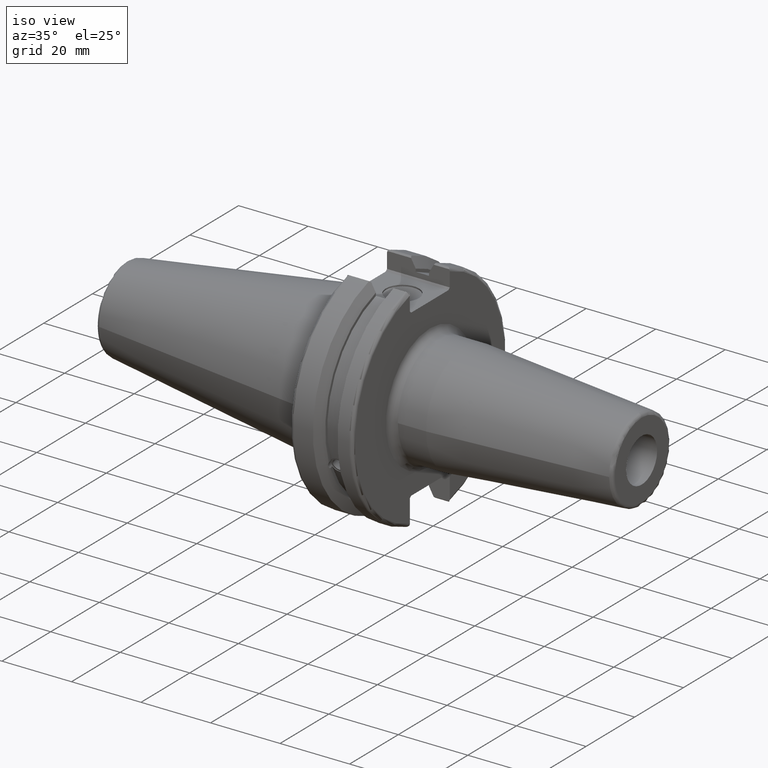
[diagram: clean part render]
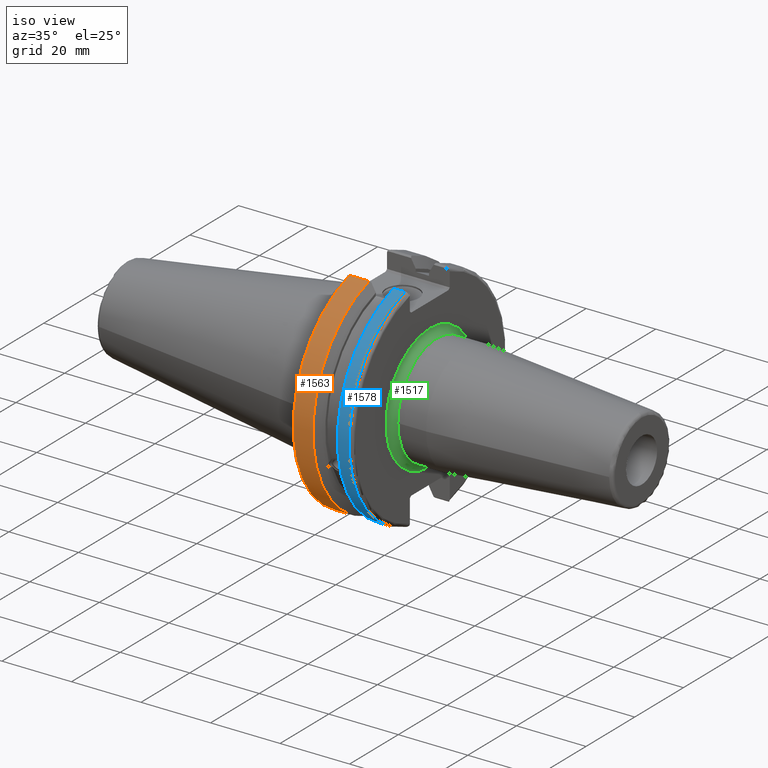
[diagram: same view with three faces highlighted in distinct colors, each labeled with its STEP entity id]
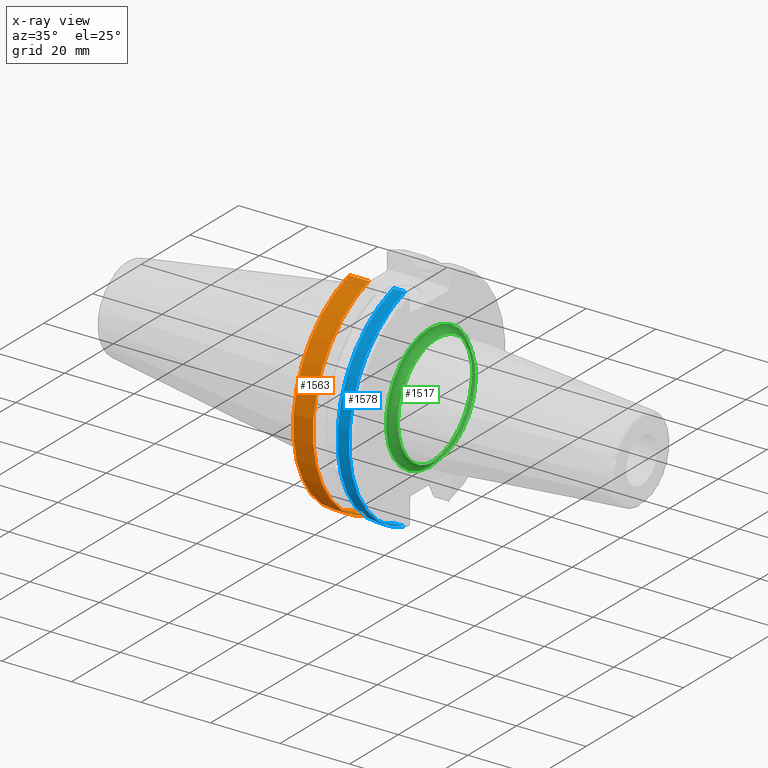
[diagram: x-ray of the same camera — body ghosted, the three highlighted faces saturated]
A machine part, iso view with three faces highlighted in distinct colors.
The next image is the same camera in x-ray (body ghosted, the three faces saturated) — at least one of them is partly hidden behind the body in this view.
Their STEP definitions:

[orange] entity #1563 — the highlighted cylindrical surface (partial cylindrical patch) has radius 31.75 mm, axis along (1, 0, 0).
#101=CYLINDRICAL_SURFACE('',#1741,31.75);
#227=LINE('',#2888,#323);
#228=LINE('',#2894,#324);
#323=VECTOR('',#2103,10.);
#324=VECTOR('',#2106,10.);
#419=FACE_OUTER_BOUND('',#518,.T.);
#518=EDGE_LOOP('',(#1312,#1313,#1314,#1315));
#610=CIRCLE('',#1738,31.75);
#612=CIRCLE('',#1742,31.75);
#759=VERTEX_POINT('',#2866);
#760=VERTEX_POINT('',#2875);
#761=VERTEX_POINT('',#2887);
#762=VERTEX_POINT('',#2893);
#960=EDGE_CURVE('',#759,#760,#610,.T.);
#963=EDGE_CURVE('',#760,#761,#227,.T.);
#965=EDGE_CURVE('',#762,#759,#228,.T.);
#966=EDGE_CURVE('',#761,#762,#612,.T.);
#1312=ORIENTED_EDGE('',*,*,#960,.F.);
#1313=ORIENTED_EDGE('',*,*,#965,.F.);
#1314=ORIENTED_EDGE('',*,*,#966,.F.);
#1315=ORIENTED_EDGE('',*,*,#963,.F.);
#1563=ADVANCED_FACE('',(#419),#101,.T.);
#1738=AXIS2_PLACEMENT_3D('',#2876,#2097,#2098);
#1741=AXIS2_PLACEMENT_3D('',#2892,#2104,#2105);
#1742=AXIS2_PLACEMENT_3D('',#2895,#2107,#2108);
#2097=DIRECTION('center_axis',(-1.,0.,0.));
#2098=DIRECTION('ref_axis',(0.,-1.,1.60812264967664E-16));
#2103=DIRECTION('',(1.,0.,0.));
#2104=DIRECTION('center_axis',(1.,0.,0.));
#2105=DIRECTION('ref_axis',(0.,-1.,1.22464679914735E-16));
#2106=DIRECTION('',(-1.,0.,0.));
#2107=DIRECTION('center_axis',(1.,0.,0.));
#2108=DIRECTION('ref_axis',(0.,0.,-1.));
#2866=CARTESIAN_POINT('',(2.,-8.67204822802685,-30.5427254764662));
#2875=CARTESIAN_POINT('',(2.,-8.67204822802685,30.5427254764662));
#2876=CARTESIAN_POINT('Origin',(2.,0.,0.));
#2887=CARTESIAN_POINT('',(7.64983323092436,-8.67204822802685,30.5427254764662));
#2888=CARTESIAN_POINT('',(4.32491661546218,-8.67204822802685,30.5427254764662));
#2892=CARTESIAN_POINT('Origin',(4.32491661546218,0.,0.));
#2893=CARTESIAN_POINT('',(7.64983323092436,-8.67204822802685,-30.5427254764662));
#2894=CARTESIAN_POINT('',(4.32491661546218,-8.67204822802685,-30.5427254764662));
#2895=CARTESIAN_POINT('Origin',(7.64983323092436,0.,0.));

[blue] entity #1578 — the highlighted cylindrical surface (partial cylindrical patch) has radius 31.75 mm, axis along (1, 0, 0).
#102=CYLINDRICAL_SURFACE('',#1766,31.75);
#250=LINE('',#2996,#346);
#251=LINE('',#2998,#347);
#346=VECTOR('',#2176,10.);
#347=VECTOR('',#2179,10.);
#434=FACE_OUTER_BOUND('',#536,.T.);
#536=EDGE_LOOP('',(#1398,#1399,#1400,#1401));
#590=CIRCLE('',#1684,31.75);
#609=CIRCLE('',#1734,31.75);
#695=VERTEX_POINT('',#2547);
#696=VERTEX_POINT('',#2551);
#746=VERTEX_POINT('',#2804);
#747=VERTEX_POINT('',#2813);
#869=EDGE_CURVE('',#696,#695,#590,.T.);
#942=EDGE_CURVE('',#746,#747,#609,.T.);
#1004=EDGE_CURVE('',#747,#695,#250,.T.);
#1005=EDGE_CURVE('',#696,#746,#251,.T.);
#1398=ORIENTED_EDGE('',*,*,#942,.F.);
#1399=ORIENTED_EDGE('',*,*,#1005,.F.);
#1400=ORIENTED_EDGE('',*,*,#869,.T.);
#1401=ORIENTED_EDGE('',*,*,#1004,.F.);
#1578=ADVANCED_FACE('',(#434),#102,.T.);
#1684=AXIS2_PLACEMENT_3D('',#2552,#1954,#1955);
#1734=AXIS2_PLACEMENT_3D('',#2814,#2078,#2079);
#1766=AXIS2_PLACEMENT_3D('',#2997,#2177,#2178);
#1954=DIRECTION('center_axis',(1.,0.,0.));
#1955=DIRECTION('ref_axis',(0.,0.,-1.));
#2078=DIRECTION('center_axis',(1.,0.,0.));
#2079=DIRECTION('ref_axis',(0.,-1.,1.60812264967664E-16));
#2176=DIRECTION('',(-1.,0.,0.));
#2177=DIRECTION('center_axis',(1.,0.,0.));
#2178=DIRECTION('ref_axis',(0.,-1.,1.22464679914735E-16));
#2179=DIRECTION('',(1.,0.,0.));
#2547=CARTESIAN_POINT('',(14.7021667690756,-8.67204822802685,-30.5427254764662));
#2551=CARTESIAN_POINT('',(14.7021667690756,-8.67204822802685,30.5427254764662));
#2552=CARTESIAN_POINT('Origin',(14.7021667690756,0.,0.));
#2804=CARTESIAN_POINT('',(18.05,-8.67204822802685,30.5427254764662));
#2813=CARTESIAN_POINT('',(18.05,-8.67204822802685,-30.5427254764662));
#2814=CARTESIAN_POINT('Origin',(18.05,0.,0.));
#2996=CARTESIAN_POINT('',(16.8760833845378,-8.67204822802685,-30.5427254764662));
#2997=CARTESIAN_POINT('Origin',(16.8760833845378,0.,0.));
#2998=CARTESIAN_POINT('',(16.8760833845378,-8.67204822802685,30.5427254764662));

[green] entity #1517 — the highlighted toroidal blend (fillet) surface has major radius 18 mm and minor (blend) radius 2 mm.
#373=FACE_OUTER_BOUND('',#463,.T.);
#463=EDGE_LOOP('',(#1044,#1045,#1046,#1047,#1048));
#570=CIRCLE('',#1636,16.);
#571=CIRCLE('',#1637,2.);
#572=CIRCLE('',#1638,18.);
#573=CIRCLE('',#1639,16.);
#644=VERTEX_POINT('',#2287);
#645=VERTEX_POINT('',#2288);
#646=VERTEX_POINT('',#2290);
#802=EDGE_CURVE('',#644,#645,#570,.T.);
#803=EDGE_CURVE('',#645,#646,#571,.T.);
#804=EDGE_CURVE('',#646,#646,#572,.T.);
#805=EDGE_CURVE('',#645,#644,#573,.T.);
#1044=ORIENTED_EDGE('',*,*,#802,.T.);
#1045=ORIENTED_EDGE('',*,*,#803,.T.);
#1046=ORIENTED_EDGE('',*,*,#804,.T.);
#1047=ORIENTED_EDGE('',*,*,#803,.F.);
#1048=ORIENTED_EDGE('',*,*,#805,.T.);
#1507=TOROIDAL_SURFACE('',#1635,18.,2.);
#1517=ADVANCED_FACE('',(#373),#1507,.F.);
#1635=AXIS2_PLACEMENT_3D('',#2286,#1829,#1830);
#1636=AXIS2_PLACEMENT_3D('',#2289,#1831,#1832);
#1637=AXIS2_PLACEMENT_3D('',#2291,#1833,#1834);
#1638=AXIS2_PLACEMENT_3D('',#2292,#1835,#1836);
#1639=AXIS2_PLACEMENT_3D('',#2293,#1837,#1838);
#1829=DIRECTION('center_axis',(-1.,0.,0.));
#1830=DIRECTION('ref_axis',(0.,0.,1.));
#1831=DIRECTION('center_axis',(-1.,0.,0.));
#1832=DIRECTION('ref_axis',(0.,-1.,-1.22464679914735E-16));
#1833=DIRECTION('center_axis',(0.,-1.,1.22464679914735E-16));
#1834=DIRECTION('ref_axis',(0.,-1.22464679914735E-16,-1.));
#1835=DIRECTION('center_axis',(1.,0.,0.));
#1836=DIRECTION('ref_axis',(0.,-1.,-1.22464679914735E-16));
#1837=DIRECTION('center_axis',(-1.,0.,0.));
#1838=DIRECTION('ref_axis',(0.,-1.,-1.22464679914735E-16));
#2286=CARTESIAN_POINT('Origin',(21.05,0.,0.));
#2287=CARTESIAN_POINT('',(21.05,-16.,-1.95943487863577E-15));
#2288=CARTESIAN_POINT('',(21.05,-1.95943487863577E-15,-16.));
#2289=CARTESIAN_POINT('Origin',(21.05,0.,0.));
#2290=CARTESIAN_POINT('',(19.05,-2.20436423846524E-15,-18.));
#2291=CARTESIAN_POINT('Origin',(21.05,-2.20436423846524E-15,-18.));
#2292=CARTESIAN_POINT('Origin',(19.05,0.,0.));
#2293=CARTESIAN_POINT('Origin',(21.05,0.,0.));